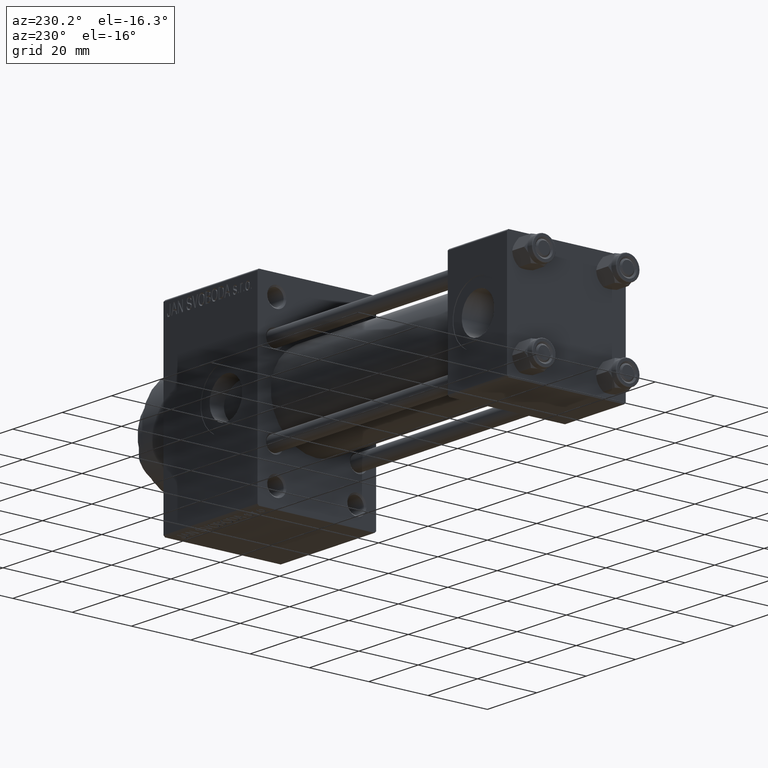
[diagram: clean part render]
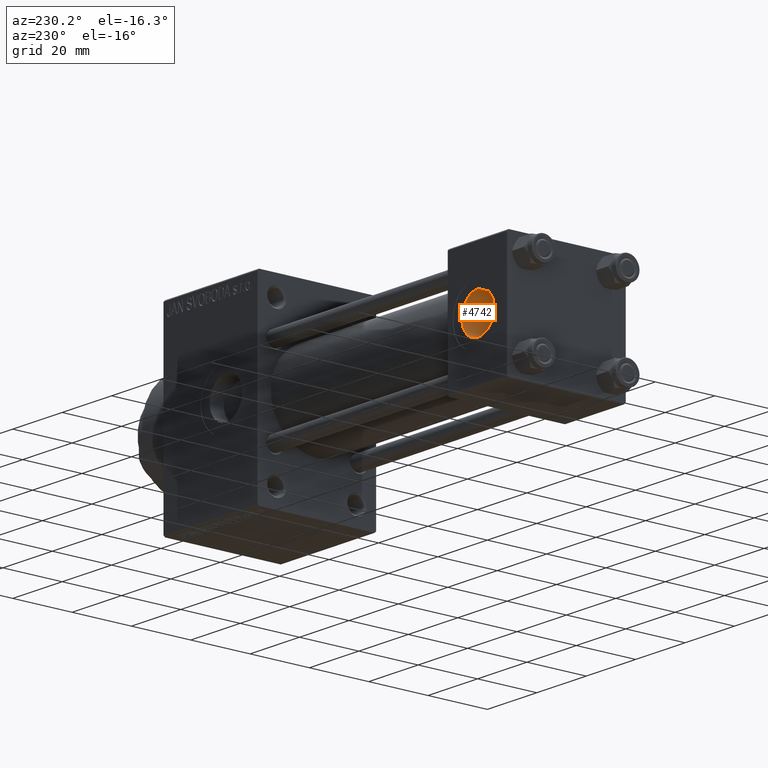
[diagram: same view with one face highlighted and labeled with its STEP entity id]
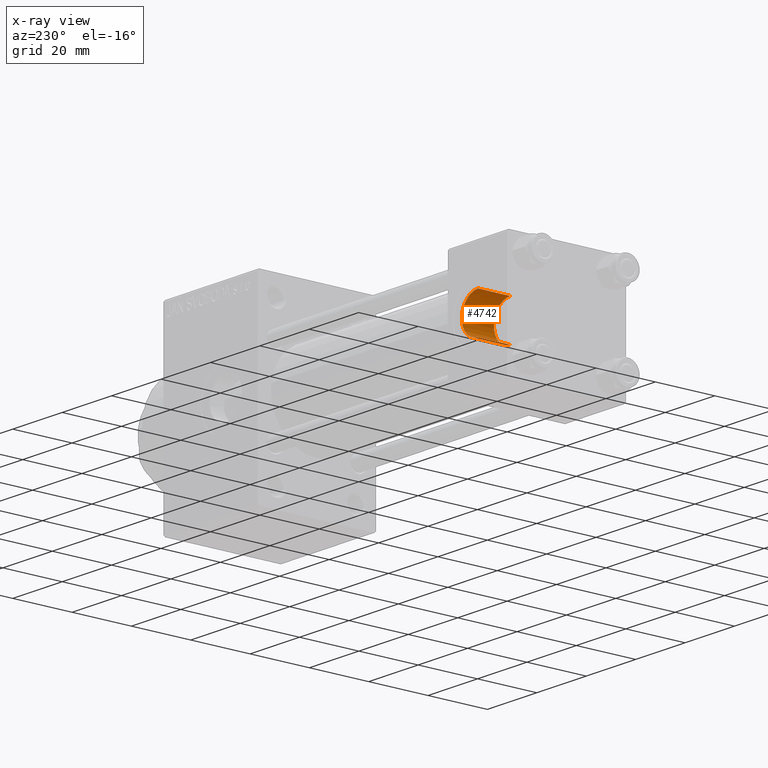
[diagram: x-ray of the same camera — body ghosted, the highlighted face saturated]
A machine part, auxiliary view. The second image highlights one B-rep face of the part: STEP entity #4742.
The next image is the same camera in x-ray: the body ghosted, the highlighted face saturated — about 0% of this face is hidden behind the body in this view.
In plain terms, the highlighted cylindrical surface (edge-blend (fillet) strip) has radius 6.58 mm, axis along (0, 1, 0).
Its self-contained STEP definition (entity closure, byte-faithful):
#1356 = CARTESIAN_POINT ( 'NONE',  ( 12.00000000000000000, 19.80000000000000071, 6.579999999999998295 ) ) ;
#1944 = AXIS2_PLACEMENT_3D ( 'NONE', #15084, #22747, #33405 ) ;
#2056 = DIRECTION ( 'NONE',  ( 0.000000000000000000, 0.000000000000000000, 1.000000000000000000 ) ) ;
#3476 = CARTESIAN_POINT ( 'NONE',  ( 12.00000000000000000, 9.000000000000001776, 6.579999999999998295 ) ) ;
#4742 = ADVANCED_FACE ( 'NONE', ( #28053 ), #36699, .F. ) ;
#12246 = VERTEX_POINT ( 'NONE', #1356 ) ;
#12546 = AXIS2_PLACEMENT_3D ( 'NONE', #24822, #31781, #2056 ) ;
#14301 = EDGE_CURVE ( 'NONE', #15761, #17856, #16488, .T. ) ;
#15084 = CARTESIAN_POINT ( 'NONE',  ( 12.00000000000000000, 8.939999999999997726, 0.000000000000000000 ) ) ;
#15355 = DIRECTION ( 'NONE',  ( -0.000000000000000000, 1.000000000000000000, -0.000000000000000000 ) ) ;
#15761 = VERTEX_POINT ( 'NONE', #21886 ) ;
#16147 = CIRCLE ( 'NONE', #1944, 6.579999999999998295 ) ;
#16488 = LINE ( 'NONE', #46972, #19524 ) ;
#16502 = CARTESIAN_POINT ( 'NONE',  ( 12.00000000000000000, 19.80000000000000071, -6.579999999999998295 ) ) ;
#16983 = DIRECTION ( 'NONE',  ( 0.000000000000000000, 1.000000000000000000, 0.000000000000000000 ) ) ;
#17856 = VERTEX_POINT ( 'NONE', #16502 ) ;
#19524 = VECTOR ( 'NONE', #24639, 1000.000000000000000 ) ;
#21850 = EDGE_CURVE ( 'NONE', #15761, #22122, #16147, .T. ) ;
#21862 = CIRCLE ( 'NONE', #44802, 6.579999999999998295 ) ;
#21886 = CARTESIAN_POINT ( 'NONE',  ( 12.00000000000000000, 8.939999999999997726, -6.579999999999998295 ) ) ;
#22122 = VERTEX_POINT ( 'NONE', #32870 ) ;
#22283 = LINE ( 'NONE', #3476, #26038 ) ;
#22702 = ORIENTED_EDGE ( 'NONE', *, *, #21850, .T. ) ;
#22747 = DIRECTION ( 'NONE',  ( -0.000000000000000000, -1.000000000000000000, -0.000000000000000000 ) ) ;
#24639 = DIRECTION ( 'NONE',  ( -0.000000000000000000, 1.000000000000000000, -0.000000000000000000 ) ) ;
#24822 = CARTESIAN_POINT ( 'NONE',  ( 12.00000000000000000, 9.000000000000001776, 0.000000000000000000 ) ) ;
#26038 = VECTOR ( 'NONE', #15355, 1000.000000000000000 ) ;
#28053 = FACE_OUTER_BOUND ( 'NONE', #45083, .T. ) ;
#28730 = ORIENTED_EDGE ( 'NONE', *, *, #14301, .F. ) ;
#31781 = DIRECTION ( 'NONE',  ( -0.000000000000000000, 1.000000000000000000, -0.000000000000000000 ) ) ;
#32870 = CARTESIAN_POINT ( 'NONE',  ( 12.00000000000000000, 8.939999999999997726, 6.579999999999998295 ) ) ;
#33405 = DIRECTION ( 'NONE',  ( 0.000000000000000000, 0.000000000000000000, 1.000000000000000000 ) ) ;
#36699 = CYLINDRICAL_SURFACE ( 'NONE', #12546, 6.579999999999998295 ) ;
#37656 = EDGE_CURVE ( 'NONE', #12246, #17856, #21862, .T. ) ;
#42899 = EDGE_CURVE ( 'NONE', #22122, #12246, #22283, .T. ) ;
#43422 = ORIENTED_EDGE ( 'NONE', *, *, #42899, .T. ) ;
#44242 = DIRECTION ( 'NONE',  ( 0.000000000000000000, 0.000000000000000000, 1.000000000000000000 ) ) ;
#44476 = CARTESIAN_POINT ( 'NONE',  ( 12.00000000000000000, 19.80000000000000071, 0.000000000000000000 ) ) ;
#44777 = ORIENTED_EDGE ( 'NONE', *, *, #37656, .T. ) ;
#44802 = AXIS2_PLACEMENT_3D ( 'NONE', #44476, #16983, #44242 ) ;
#45083 = EDGE_LOOP ( 'NONE', ( #28730, #22702, #43422, #44777 ) ) ;
#46972 = CARTESIAN_POINT ( 'NONE',  ( 12.00000000000000000, 9.000000000000001776, -6.579999999999998295 ) ) ;